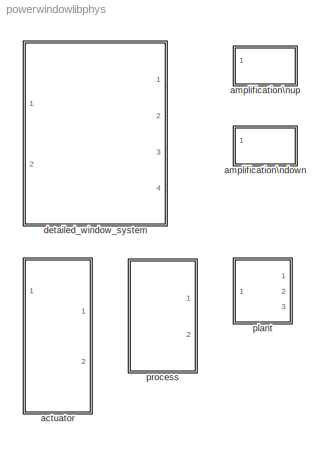
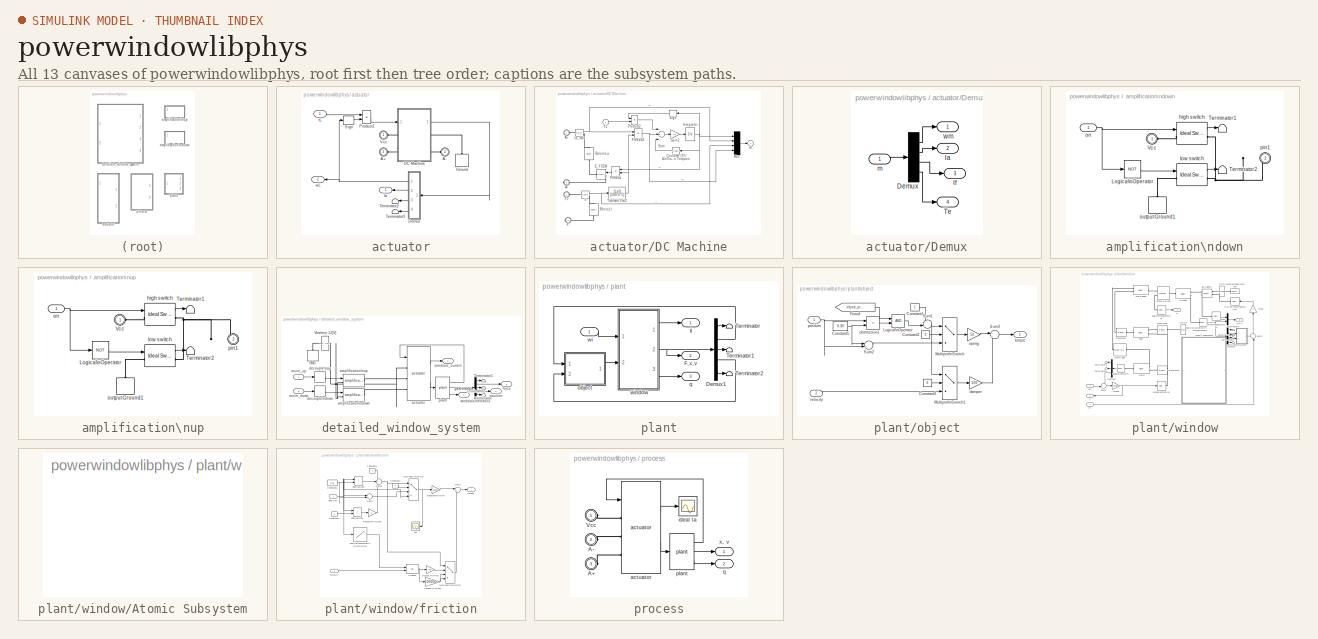
[diagram: thumbnail index - all 13 canvases of the model, root first then tree order]
MODEL powerwindowlibphys
KIND library
CONFIG InitFcn = powericon('psbinitsys',bdroot);
BLOCK [SubSystem] actuator
  MinAlgLoopOccurrences = off
  Ports = [1, 2, 0, 0, 0, 3]
  PropExecContextAcrossSSBoundary = on
  RTWSystemCode = Auto
  TreatAsAtomicUnit = off
BLOCK [PMIOPort] actuator/A+
  Port = 3
  Side = Left
BLOCK [PMIOPort] actuator/A-
  Port = 2
  Side = Left
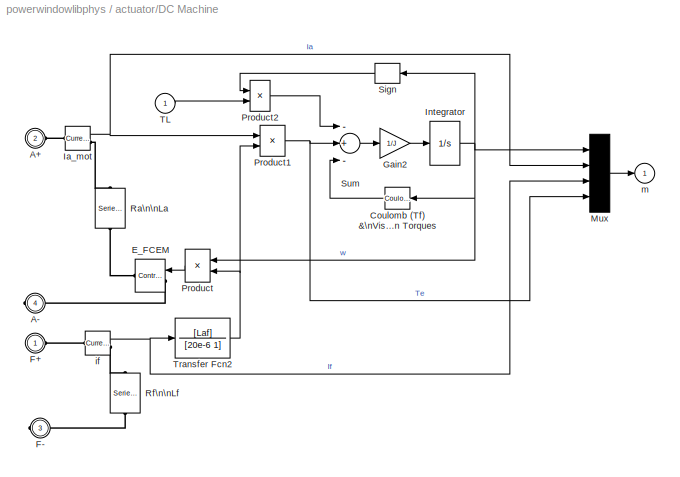
BLOCK [SubSystem] actuator/DC Machine
  MaskCallbackString = |||||||
  MaskDescription = This block implements a separately excited DC machine. Access is provided  to the field connections so that the machine can be used as a shunt-connected or a series-connected  DC machine. \n\nInput 1 and output 1 : positive and negative armature terminals\nInput 2 and output 2 : positive and negative field terminals\nInput 3    : Load torque \nOutput 3 : Simulink measurement output [ w Ia If Te ]
  MaskDisplay = plot(-80,-80,80,80,[0,9,18,24,29,30,29,24,18,9,0,-9,-18,-24,-29,-30,-29,-24,-18,-9,0],[30,29,24,18,9,0,-9,-18,-24,-29,-30,-29,-24,-18,-9,0,9,18,24,29,30],[-29,-35,-35,-29],[-8,-8,8,8],[29,35,35,29],[-8,-8,8,8],[-35,-55],[0,0],[35,55],[0,0],[-78,-50,-50,-49,-45,-39,-33,-26,-21,-18,-17,-19,-22,-22,-26,-27,-25,-22,-16,-9,-3,2,6,6,4,1,1,-3,-4,-2,2,7,14,20,26,29,30,28,24,24,21,20,21,25,31,37,44,49,50,5...<+266ch>
  MaskEnableString = on,on,on,on,on,on,on,on
  MaskHelp = web(psbhelp)
  MaskIconFrame = on
  MaskIconOpaque = off
  MaskIconRotate = none
  MaskIconUnits = autoscale
  MaskInitialization = Ra=RLa(1); La=RLa(2);\nRf=RLf(1); Lf=RLf(2);\n\n\n\n\n\n
  MaskPromptString = Armature resistance and inductance [Ra (ohms) La (H) ]|Field resistance and inductance [Rf (ohms) Lf (H) ]|Field-armature mutual inductance Laf (H) :|Total inertia J (kg.m^2)|Viscous friction coefficient Bm (N.m.s)|Coulomb friction torque Tf (N.m)|Initial speed (rad/s) :|Output type
  MaskStyleString = edit,edit,edit,edit,edit,edit,edit,edit
  MaskTabNameString = ,,,,,,,
  MaskToolTipString = on,on,on,on,on,on,on,on
  MaskTunableValueString = on,on,on,on,on,on,on,on
  MaskType = DC machine
  MaskValueString = [0.15  0.036]|[1.5 3]|1|0.085|5|0|0|110
  MaskVarAliasString = ,,,,,,,
  MaskVariables = RLa=@1;RLf=@2;Laf=@3;J=@4;Bm=@5;Tf=@6;w0=@7;PSBOutputType=@8;
  MaskVisibilityString = on,on,on,on,on,on,on,off
  MinAlgLoopOccurrences = off
  Ports = [1, 1, 0, 0, 0, 2, 2]
  PropExecContextAcrossSSBoundary = on
  RTWSystemCode = Auto
  TreatAsAtomicUnit = off
BLOCK [PMIOPort] actuator/DC Machine/A+
  Port = 2
  Side = Left
BLOCK [PMIOPort] actuator/DC Machine/A-
  Port = 4
  Side = Right
BLOCK [Reference] actuator/DC Machine/Coulomb (Tf) &\nViscous ( Bm*w) \nFriction Torques  REF=simulink/Discontinuities/Coulomb &\nViscous Friction
  Ports = [1, 1]
  ShowPortLabels = on
  SourceBlock = simulink/Discontinuities/Coulomb &\nViscous Friction
  SourceType = Coulombic and Viscous Friction
  gain = Bm
  offset = Tf
BLOCK [Reference] actuator/DC Machine/E_FCEM  REF=powerlib/Electrical\nSources/Controlled Voltage Source
  Amplitude = 0
  Frequency = 0
  Initialize = on
  Measurements = None
  Phase = 0
  Ports = [1, 0, 0, 0, 0, 1, 1]
  ShowPortLabels = on
  SourceBlock = powerlib/Electrical\nSources/Controlled Voltage Source
  SourceType = AC
BLOCK [PMIOPort] actuator/DC Machine/F+
  Port = 1
  Side = Left
BLOCK [PMIOPort] actuator/DC Machine/F-
  Port = 3
  Side = Right
BLOCK [Gain] actuator/DC Machine/Gain2
  Gain = 1/J
BLOCK [Reference] actuator/DC Machine/Ia_mot  REF=powerlib/Measurements/Current Measurement
  OutputType = Magnitude
  PSBequivalent = 0
  PhasorSimulation = off
  Ports = [0, 1, 0, 0, 0, 1, 1]
  ShowPortLabels = on
  SourceBlock = powerlib/Measurements/Current Measurement
  SourceType = Current Measurement
BLOCK [Integrator] actuator/DC Machine/Integrator
  InitialCondition = w0
  Ports = [1, 1]
BLOCK [Mux] actuator/DC Machine/Mux
  Ports = [4, 1]
BLOCK [Product] actuator/DC Machine/Product
  Ports = [2, 1]
  RndMeth = Floor
BLOCK [Product] actuator/DC Machine/Product1
  Ports = [2, 1]
  RndMeth = Floor
BLOCK [Product] actuator/DC Machine/Product2
  Ports = [2, 1]
  RndMeth = Floor
BLOCK [Reference] actuator/DC Machine/Ra\n\nLa  REF=powerlib/Elements/Series RLC Branch
  Capacitance = inf
  Inductance = La
  LConnTagsString = __new0
  LeftPortType = p1
  Measurements = None
  PhysicalDomain = powersysdomain
  Ports = [0, 0, 0, 0, 0, 1, 1]
  RConnTagsString = __new0
  Resistance = Ra
  RightPortType = p1
  SourceBlock = powerlib/Elements/Series RLC Branch
  SourceType = Series RLC Branch
  SubClassName = unknown
BLOCK [Reference] actuator/DC Machine/Rf\n\nLf  REF=powerlib/Elements/Series RLC Branch
  Capacitance = inf
  Inductance = Lf
  LConnTagsString = __new0
  LeftPortType = p1
  Measurements = None
  PhysicalDomain = powersysdomain
  Ports = [0, 0, 0, 0, 0, 1, 1]
  RConnTagsString = __new0
  Resistance = Rf
  RightPortType = p1
  SourceBlock = powerlib/Elements/Series RLC Branch
  SourceType = Series RLC Branch
  SubClassName = unknown
BLOCK [Signum] actuator/DC Machine/Sign
BLOCK [Sum] actuator/DC Machine/Sum
  Inputs = -+-
  Ports = [3, 1]
BLOCK [Inport] actuator/DC Machine/TL
  IconDisplay = Port number
  LatchInput = off
  Port = 1
BLOCK [TransferFcn] actuator/DC Machine/Transfer Fcn2
  Denominator = [20e-6 1]
  Numerator = [Laf]
BLOCK [Reference] actuator/DC Machine/if  REF=powerlib/Measurements/Current Measurement
  OutputType = Magnitude
  PSBequivalent = 0
  PhasorSimulation = off
  Ports = [0, 1, 0, 0, 0, 1, 1]
  ShowPortLabels = on
  SourceBlock = powerlib/Measurements/Current Measurement
  SourceType = Current Measurement
BLOCK [Outport] actuator/DC Machine/m
  BusOutputAsStruct = off
  IconDisplay = Port number
  InitialOutput = 0
BLOCK [SubSystem] actuator/Demux
  MinAlgLoopOccurrences = off
  Ports = [1, 4]
  PropExecContextAcrossSSBoundary = on
  RTWSystemCode = Auto
  TreatAsAtomicUnit = off
BLOCK [Demux] actuator/Demux/Demux
  Ports = [1, 4]
BLOCK [Outport] actuator/Demux/Ia
  BusOutputAsStruct = off
  IconDisplay = Port number
  Port = 2
BLOCK [Outport] actuator/Demux/If
  BusOutputAsStruct = off
  IconDisplay = Port number
  Port = 3
BLOCK [Outport] actuator/Demux/Te
  BusOutputAsStruct = off
  IconDisplay = Port number
  Port = 4
BLOCK [Inport] actuator/Demux/m
  IconDisplay = Port number
  LatchInput = off
  Port = 1
BLOCK [Outport] actuator/Demux/wm
  BusOutputAsStruct = off
  IconDisplay = Port number
BLOCK [PMComponent] actuator/Ground
  LConnTagsString = a
  LeftPortType = p1
  MaskDescription = Ground connection.
  MaskDisplay = plot(-10,-10,10,10,-[5 5],[-10 10],[0 0],[-5 5],-[-5 -5],[-2.5 2.5],-[15 5],[0 0])
  MaskHelp = web(psbhelp);
  MaskIconFrame = off
  MaskIconOpaque = on
  MaskIconRotate = port
  MaskIconUnits = autoscale
  MaskType = Ground
  PhysicalDomain = powersysdomain
  Ports = [0, 0, 0, 0, 0, 1]
  RightPortType = p1
BLOCK [Outport] actuator/Ia
  BusOutputAsStruct = off
  IconDisplay = Port number
BLOCK [Product] actuator/Product2
  Ports = [2, 1]
  RndMeth = Floor
BLOCK [Signum] actuator/Sign
BLOCK [Terminator] actuator/Terminator2
BLOCK [Terminator] actuator/Terminator3
BLOCK [PMIOPort] actuator/Vcc
  Port = 1
  Side = Left
BLOCK [Inport] actuator/tL
  IconDisplay = Port number
  LatchInput = off
  Port = 1
BLOCK [Outport] actuator/wL
  BusOutputAsStruct = off
  IconDisplay = Port number
  Port = 2
BLOCK [SubSystem] amplification\ndown
  MinAlgLoopOccurrences = off
  Ports = [1, 0, 0, 0, 0, 1, 1]
  PropExecContextAcrossSSBoundary = on
  RTWSystemCode = Auto
  TreatAsAtomicUnit = off
BLOCK [Logic] amplification\ndown/Logical\nOperator
  Operator = NOT
  Ports = [1, 1]
BLOCK [Terminator] amplification\ndown/Terminator1
BLOCK [Terminator] amplification\ndown/Terminator2
BLOCK [PMIOPort] amplification\ndown/Vcc
  Port = 1
  Side = Left
BLOCK [Reference] amplification\ndown/high switch  REF=powerlib/Power\nElectronics/Ideal Switch
  Cs = inf
  IC = 0
  Lon = 0
  Measurements = on
  Ports = [1, 1, 0, 0, 0, 1, 1]
  Ron = 0.01
  Rs = 1000000
  ShowPortLabels = on
  SourceBlock = powerlib/Power\nElectronics/Ideal Switch
  SourceType = Ideal Switch
BLOCK [Reference] amplification\ndown/low switch  REF=powerlib/Power\nElectronics/Ideal Switch
  Cs = inf
  IC = 0
  Lon = 0
  Measurements = on
  Ports = [1, 1, 0, 0, 0, 1, 1]
  Ron = 0.01
  Rs = 1000000
  ShowPortLabels = on
  SourceBlock = powerlib/Power\nElectronics/Ideal Switch
  SourceType = Ideal Switch
BLOCK [Inport] amplification\ndown/on
  IconDisplay = Port number
  LatchInput = off
  Port = 1
BLOCK [PMComponent] amplification\ndown/output Ground1
  LConnTagsString = a
  LeftPortType = p1
  MaskDescription = Ground connection.
  MaskDisplay = plot(-10,-10,10,10,-[5 5],[-10 10],[0 0],[-5 5],-[-5 -5],[-2.5 2.5],-[15 5],[0 0])
  MaskHelp = web(psbhelp);
  MaskIconFrame = off
  MaskIconOpaque = on
  MaskIconRotate = port
  MaskIconUnits = autoscale
  MaskType = Ground
  PhysicalDomain = powersysdomain
  Ports = [0, 0, 0, 0, 0, 1]
  RightPortType = p1
BLOCK [PMIOPort] amplification\ndown/pin1
  Port = 2
  Side = Right
BLOCK [SubSystem] amplification\nup
  MinAlgLoopOccurrences = off
  Ports = [1, 0, 0, 0, 0, 1, 1]
  PropExecContextAcrossSSBoundary = on
  RTWSystemCode = Auto
  TreatAsAtomicUnit = off
BLOCK [Logic] amplification\nup/Logical\nOperator
  Operator = NOT
  Ports = [1, 1]
BLOCK [Terminator] amplification\nup/Terminator1
BLOCK [Terminator] amplification\nup/Terminator2
BLOCK [PMIOPort] amplification\nup/Vcc
  Port = 1
  Side = Left
BLOCK [Reference] amplification\nup/high switch  REF=powerlib/Power\nElectronics/Ideal Switch
  Cs = inf
  IC = 0
  Lon = 0
  Measurements = on
  Ports = [1, 1, 0, 0, 0, 1, 1]
  Ron = 0.01
  Rs = 1000000
  ShowPortLabels = on
  SourceBlock = powerlib/Power\nElectronics/Ideal Switch
  SourceType = Ideal Switch
BLOCK [Reference] amplification\nup/low switch  REF=powerlib/Power\nElectronics/Ideal Switch
  Cs = inf
  IC = 0
  Lon = 0
  Measurements = on
  Ports = [1, 1, 0, 0, 0, 1, 1]
  Ron = 0.01
  Rs = 1000000
  ShowPortLabels = on
  SourceBlock = powerlib/Power\nElectronics/Ideal Switch
  SourceType = Ideal Switch
BLOCK [Inport] amplification\nup/on
  IconDisplay = Port number
  LatchInput = off
  Port = 1
BLOCK [PMComponent] amplification\nup/output Ground1
  LConnTagsString = a
  LeftPortType = p1
  MaskDescription = Ground connection.
  MaskDisplay = plot(-10,-10,10,10,-[5 5],[-10 10],[0 0],[-5 5],-[-5 -5],[-2.5 2.5],-[15 5],[0 0])
  MaskHelp = web(psbhelp);
  MaskIconFrame = off
  MaskIconOpaque = on
  MaskIconRotate = port
  MaskIconUnits = autoscale
  MaskType = Ground
  PhysicalDomain = powersysdomain
  Ports = [0, 0, 0, 0, 0, 1]
  RightPortType = p1
BLOCK [PMIOPort] amplification\nup/pin1
  Port = 2
  Side = Right
BLOCK [SubSystem] detailed_window_system
  MinAlgLoopOccurrences = off
  Ports = [2, 4]
  PropExecContextAcrossSSBoundary = on
  RTWSystemCode = Auto
  TreatAsAtomicUnit = off
BLOCK [PMComponent] detailed_window_system/GND
  LConnTagsString = a
  LeftPortType = p1
  MaskDescription = Ground connection.
  MaskDisplay = plot(-10,-10,10,10,-[5 5],[-10 10],[0 0],[-5 5],-[-5 -5],[-2.5 2.5],-[15 5],[0 0])
  MaskHelp = web(psbhelp);
  MaskIconFrame = off
  MaskIconOpaque = on
  MaskIconRotate = port
  MaskIconUnits = autoscale
  MaskType = Ground
  PhysicalDomain = powersysdomain
  Ports = [0, 0, 0, 0, 0, 1]
  RightPortType = p1
BLOCK [Terminator] detailed_window_system/Terminator
BLOCK [Terminator] detailed_window_system/Terminator1
BLOCK [Terminator] detailed_window_system/Terminator2
BLOCK [Reference] detailed_window_system/Vbattery 12[V]  REF=powerlib/Electrical\nSources/DC Voltage Source
  Amplitude = 12
  Measurements = None
  Ports = [0, 0, 0, 0, 0, 1, 1]
  ShowPortLabels = on
  SourceBlock = powerlib/Electrical\nSources/DC Voltage Source
  SourceType = DC Voltage Source
BLOCK [Reference] detailed_window_system/actuator  REF=powerwindowlibphys/actuator  (lib defined in mdl_f33da779f18b)
  Ports = [1, 2, 0, 0, 0, 3]
  ShowPortLabels = on
  SourceBlock = powerwindowlibphys/actuator
  SourceType = SubSystem
BLOCK [Reference] detailed_window_system/amplification\ndown  REF=powerwindowlibphys/amplification\ndown  (lib defined in mdl_f33da779f18b)
  Ports = [1, 0, 0, 0, 0, 1, 1]
  ShowPortLabels = on
  SourceBlock = powerwindowlibphys/amplification\ndown
  SourceType = SubSystem
BLOCK [Reference] detailed_window_system/amplification\nup  REF=powerwindowlibphys/amplification\nup  (lib defined in mdl_f33da779f18b)
  Ports = [1, 0, 0, 0, 0, 1, 1]
  ShowPortLabels = on
  SourceBlock = powerwindowlibphys/amplification\nup
  SourceType = SubSystem
BLOCK [Outport] detailed_window_system/armature_current
  BusOutputAsStruct = off
  IconDisplay = Port number
BLOCK [Memory] detailed_window_system/decouple\ndown
BLOCK [Memory] detailed_window_system/decouple\nup
BLOCK [Outport] detailed_window_system/force
  BusOutputAsStruct = off
  IconDisplay = Port number
  Port = 2
BLOCK [Outport] detailed_window_system/gear\nangle
  BusOutputAsStruct = off
  IconDisplay = Port number
  Port = 4
BLOCK [Inport] detailed_window_system/move_down
  IconDisplay = Port number
  LatchInput = off
  Port = 2
BLOCK [Inport] detailed_window_system/move_up
  IconDisplay = Port number
  LatchInput = off
  Port = 1
BLOCK [Reference] detailed_window_system/plant  REF=powerwindowlibphys/plant  (lib defined in mdl_f33da779f18b)
  Ports = [1, 3]
  ShowPortLabels = on
  SourceBlock = powerwindowlibphys/plant
  SourceType = SubSystem
BLOCK [Outport] detailed_window_system/position
  BusOutputAsStruct = off
  IconDisplay = Port number
  Port = 3
BLOCK [Demux] detailed_window_system/window kinematics
  Outputs = [1,1,2,1,4]
  Ports = [1, 5]
BLOCK [SubSystem] plant
  MinAlgLoopOccurrences = off
  Ports = [1, 3]
  PropExecContextAcrossSSBoundary = on
  RTWSystemCode = Auto
  TreatAsAtomicUnit = off
BLOCK [Demux] plant/Demux1
  Outputs = [4, 1, 2, 1, 1]
  Ports = [1, 5]
BLOCK [Outport] plant/F, x, v
  BusOutputAsStruct = off
  IconDisplay = Port number
  Port = 2
BLOCK [Terminator] plant/Terminator
BLOCK [Terminator] plant/Terminator1
BLOCK [Terminator] plant/Terminator2
BLOCK [SubSystem] plant/object
  MinAlgLoopOccurrences = off
  Ports = [2, 1]
  PropExecContextAcrossSSBoundary = on
  RTWSystemCode = Auto
  TreatAsAtomicUnit = off
BLOCK [Constant] plant/object/Constant1
BLOCK [Constant] plant/object/Constant2
  Value = 0
BLOCK [Constant] plant/object/Constant3
  Value = 0
BLOCK [Constant] plant/object/Constant5
  Value = 0.30
BLOCK [From] plant/object/From4
  CloseFcn = tagdialog Close
  DialogController = Simulink.DDGSource
  GotoTag = object_present
BLOCK [Logic] plant/object/Logical\nOperator
  Ports = [2, 1]
BLOCK [MultiPortSwitch] plant/object/Multiport\nSwitch
  Inputs = 2
  Ports = [3, 1]
  SaturateOnIntegerOverflow = off
BLOCK [MultiPortSwitch] plant/object/Multiport\nSwitch1
  Inputs = 2
  Ports = [3, 1]
  SaturateOnIntegerOverflow = off
BLOCK [Sum] plant/object/Sum1
  IconShape = round
  Inputs = ++|
  Ports = [2, 1]
BLOCK [Sum] plant/object/Sum2
  IconShape = round
  Inputs = |-+
  Ports = [2, 1]
BLOCK [Sum] plant/object/Sum3
  IconShape = round
  Inputs = |++
  Ports = [2, 1]
BLOCK [Gain] plant/object/damper
  Gain = 500
BLOCK [RelationalOperator] plant/object/obstruction1
  Operator = >
BLOCK [Inport] plant/object/position
  IconDisplay = Port number
  LatchInput = off
  Port = 1
BLOCK [Gain] plant/object/spring
  Gain = 50
BLOCK [Outport] plant/object/torque
  BusOutputAsStruct = off
  IconDisplay = Port number
BLOCK [Inport] plant/object/velocity
  IconDisplay = Port number
  LatchInput = off
  Port = 2
BLOCK [Outport] plant/q
  BusOutputAsStruct = off
  IconDisplay = Port number
  Port = 3
BLOCK [Outport] plant/ti
  BusOutputAsStruct = off
  IconDisplay = Port number
BLOCK [Inport] plant/wi
  IconDisplay = Port number
  LatchInput = off
  Port = 1
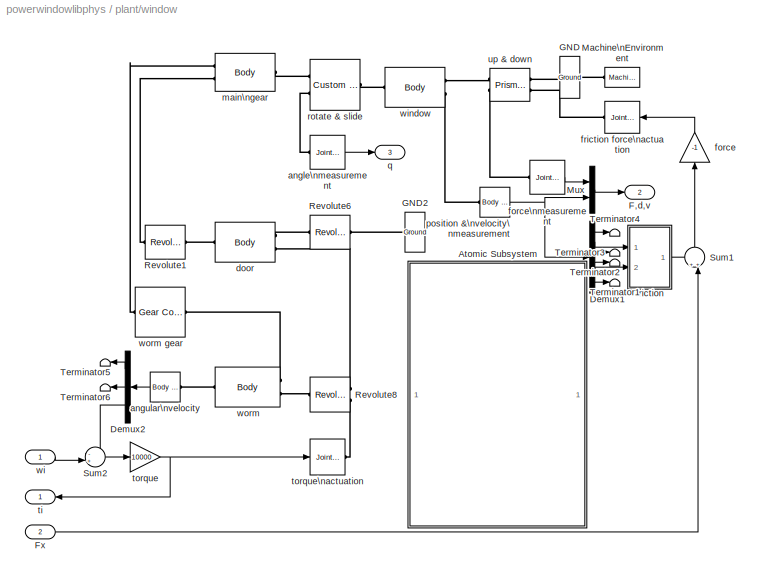
BLOCK [SubSystem] plant/window
  MinAlgLoopOccurrences = off
  Ports = [2, 3]
  PropExecContextAcrossSSBoundary = on
  RTWSystemCode = Auto
  TreatAsAtomicUnit = off
BLOCK [SubSystem] plant/window/Atomic Subsystem
  MaskDisplay = image(imread('pw_window1c.jpg'))
  MaskIconFrame = on
  MaskIconOpaque = on
  MaskIconRotate = none
  MaskIconUnits = autoscale
  MinAlgLoopOccurrences = off
  Ports = []
  PropExecContextAcrossSSBoundary = on
  RTWSystemCode = Auto
  TreatAsAtomicUnit = on
BLOCK [Demux] plant/window/Demux1
  Outputs = 6
  Ports = [1, 6]
BLOCK [Demux] plant/window/Demux2
  Outputs = 3
  Ports = [1, 3]
BLOCK [Outport] plant/window/F,d,v
  BusOutputAsStruct = off
  IconDisplay = Port number
  Port = 2
BLOCK [Inport] plant/window/Fx
  IconDisplay = Port number
  LatchInput = off
  Port = 2
BLOCK [Reference] plant/window/GND  REF=mblibv1/Bodies/Ground
  ClassName = Ground
  CoordPosition = [10 0 0]
  CoordPositionUnits = cm
  DialogClass = GroundBlock
  LeftPortType = env
  MachineId = [0 0]
  Opaque = on
  PhysicalDomain = Mechanical
  Ports = [0, 0, 0, 0, 0, 1, 1]
  RightPortType = workingframe
  ShowEnvPort = on
  ShowPortLabels = on
  SourceBlock = mblibv1/Bodies/Ground
  SourceType = msb
  StateVectorMgrId = -1
  UserData = DataTag0
  UserDataPersistent = on
BLOCK [Reference] plant/window/GND2  REF=mblibv1/Bodies/Ground
  ClassName = Ground
  CoordPosition = [0 0 0]
  CoordPositionUnits = m
  DialogClass = GroundBlock
  LeftPortType = env
  MachineId = [0 0]
  Opaque = on
  PhysicalDomain = Mechanical
  Ports = [0, 0, 0, 0, 0, 0, 1]
  RightPortType = workingframe
  ShowEnvPort = off
  ShowPortLabels = on
  SourceBlock = mblibv1/Bodies/Ground
  SourceType = msb
  StateVectorMgrId = -1
  UserData = DataTag1
  UserDataPersistent = on
BLOCK [Reference] plant/window/Machine\nEnvironment  REF=mblibv1/Bodies/Machine\nEnvironment
  AnalysisType = Forward dynamics
  AngularAssemblyTolerance = 0.001
  AngularAssemblyToleranceUnits = rad
  ClassName = Environment
  ConstraintAbsTolerance = 0.0001
  ConstraintRelTolerance = 0.0001
  ConstraintSolverType = Stabilizing
  DialogController = MECH.DialogSource
  DialogTemplateClass = MECH.MachineEnvironment
  Dimensionality = Auto-detect
  Gravity = [0 0 0]
  GravityAsSignal = off
  GravityUnits = m/s^2
  LinearAssemblyTolerance = 0.001
  LinearAssemblyToleranceUnits = m
  Opaque = on
  PerturbationSize = 0.001
  PhysicalDomain = Mechanical
  PortType = env
  Ports = [0, 0, 0, 0, 0, 0, 1]
  ShowPortLabels = on
  SourceBlock = mblibv1/Bodies/Machine\nEnvironment
  SourceType = Mechanical
  StatePerturbationType = Adaptive
  SyncWhenCopied = off
  Tag = Factory ground
  UseRobustSingularityHandling = off
  VisualizeMachine = on
BLOCK [Mux] plant/window/Mux
  DisplayOption = bar
  Inputs = 2
  Ports = [2, 1]
BLOCK [Reference] plant/window/Revolute1  REF=mblibv1/Joints/Revolute
  ClassName = Joint
  CutJoint = off
  Description = Mechanical Blockset
  DialogClass = JointBlock
  LConnTagsString = __newl0
  LeftPortType = blob
  MarkAsCut = off
  NumSAPorts = 0
  PhysicalDomain = mechanical
  Ports = [0, 0, 0, 0, 0, 1, 1]
  PrimitiveProps = R1$WORLD$[0 0 1]$revolute
  Primitives = revolute
  RConnTagsString = __newr0
  RightPortType = blob
  SourceBlock = mblibv1/Joints/Revolute
  SourceType = msb
  SubClassName = Unknown
  Tag = Factory generic
BLOCK [Reference] plant/window/Revolute6  REF=mblibv1/Joints/Revolute
  ClassName = Joint
  CutJoint = off
  Description = Mechanical Blockset
  DialogClass = JointBlock
  LConnTagsString = __newl0
  LeftPortType = blob
  MarkAsCut = off
  NumSAPorts = 0
  PhysicalDomain = mechanical
  Ports = [0, 0, 0, 0, 0, 1, 1]
  PrimitiveProps = R1$WORLD$[1 0 0]$revolute
  Primitives = revolute
  RConnTagsString = __newr0
  RightPortType = blob
  SourceBlock = mblibv1/Joints/Revolute
  SourceType = msb
  SubClassName = Unknown
  Tag = Factory generic
BLOCK [Reference] plant/window/Revolute8  REF=mblibv1/Joints/Revolute
  ClassName = Joint
  CutJoint = off
  Description = Mechanical Blockset
  DialogClass = JointBlock
  LConnTagsString = __newl0|SA1
  LeftPortType = blob
  MarkAsCut = off
  NumSAPorts = 1
  PhysicalDomain = mechanical
  Ports = [0, 0, 0, 0, 0, 2, 1]
  PrimitiveProps = R1$WORLD$[0 0 1]$revolute
  Primitives = revolute
  RConnTagsString = __newr0
  RightPortType = blob
  SourceBlock = mblibv1/Joints/Revolute
  SourceType = msb
  SubClassName = Unknown
  Tag = Factory generic
BLOCK [Sum] plant/window/Sum1
  IconShape = round
  Inputs = ++|
  Ports = [2, 1]
BLOCK [Sum] plant/window/Sum2
  IconShape = round
  Inputs = -+|
  Ports = [2, 1]
BLOCK [Terminator] plant/window/Terminator1
BLOCK [Terminator] plant/window/Terminator2
BLOCK [Terminator] plant/window/Terminator3
BLOCK [Terminator] plant/window/Terminator4
BLOCK [Terminator] plant/window/Terminator5
BLOCK [Terminator] plant/window/Terminator6
BLOCK [Reference] plant/window/angle\nmeasurement  REF=mblibv1/Sensors & \nActuators/Joint Sensor
  Acceleration = off
  AccelerationUnits = m/s
  ActiveIO = off
  Angle = on
  AngleUnits = rad
  ArcAcceleration = off
  ArcAccelerationUnits = deg/s
  ArcVelocity = off
  ArcVelocityUnits = deg/s
  ClassName = JointSensor
  CoordPosition = off
  CoordPositionUnits = m
  Description = Mechanical Blockset
  DialogClass = MechanicalSensorBlock
  Force = off
  ForceUnits = N
  Muxed = on
  Opaque = on
  OutputVector = [ 1 ]
  PhysicalDomain = Mechanical
  PortType = blob
  Ports = [0, 1, 0, 0, 0, 1]
  Pose = off
  Primitive = R1
  Quaternion = on
  QuaternionDDT = off
  QuaternionDT = off
  QuaternionUnits = off
  ReactionForce = off
  ReactionForceUnits = N
  ReactionMoment = off
  ReactionMomentUnits = N-m
  ReactionReferenceFrame = Absolute (World)
  ReactionSensedSide = Base
  ReferenceFrame = Absolute (INERTIAL)
  ShowPortLabels = on
  SourceBlock = mblibv1/Sensors & \nActuators/Joint Sensor
  SourceType = msb
  Torque = off
  TorqueUnits = N-m
  Velocity = off
  VelocityUnits = m/s
  Width = 1
BLOCK [Reference] plant/window/angular\nvelocity  REF=mblibv1/Sensors & \nActuators/Body Sensor
  Acceleration = off
  AccelerationUnits = m/s
  ActiveIO = off
  Angle = on
  AngleUnits = deg
  ArcAcceleration = off
  ArcAccelerationUnits = deg/s
  ArcVelocity = on
  ArcVelocityUnits = rad/s
  ClassName = BodySensor
  CoordPosition = off
  CoordPositionUnits = m
  Description = Mechanical Blockset
  DialogClass = MechanicalSensorBlock
  Muxed = on
  Opaque = on
  OutputVector = [ 3 ]
  PhysicalDomain = Mechanical
  PortType = blob
  Ports = [0, 1, 0, 0, 0, 1]
  Pose = off
  Quaternion = on
  QuaternionDDT = off
  QuaternionDT = off
  QuaternionUnits = off
  ReferenceFrame = Absolute (World)
  ShowPortLabels = on
  SourceBlock = mblibv1/Sensors & \nActuators/Body Sensor
  SourceType = msb
  Velocity = off
  VelocityUnits = m/s
  Width = 3
BLOCK [Reference] plant/window/door  REF=mblibv1/Bodies/Body
  CG = Left$CG$[0 0 0]$WORLD$WORLD$cm$[0 0 0]$Euler X-Y-Z$deg$WORLD$true
  ClassName = Body
  Density = 1
  DensityUnits = kg/m^3
  DensityUse = false
  Description = Mechanical Blockset
  DialogClass = MechanicalBodyBlock
  Inertia = eye(3)
  InertiaUnits = kg*m^2
  LConnTagsString = CS3|CG
  LeftPortType = workingframe
  Mass = 1
  MassUnits = kg
  PhysicalDomain = mechanical
  Ports = [0, 0, 0, 0, 0, 2, 1]
  RConnTagsString = CS1
  RightPortType = workingframe
  Shape = Cylinder
  ShapeDims = [1 1]
  ShapeUnits = m
  ShapeUse = false
  SourceBlock = mblibv1/Bodies/Body
  SourceType = msb
  SubClassName = Unknown
  Tag = Factory generic
  WorkingFrames = Left$CS3$[0 0 0]$CG$CG$cm$[0 0 0]$Euler X-Y-Z$deg$WORLD$true#Right$CS1$[17 0 0]$CG$CG$cm$[0 0 0]$Euler X-Y-Z$deg$WORLD$true
BLOCK [Gain] plant/window/force
  Gain = -1
BLOCK [Reference] plant/window/force\nmeasurement  REF=mblibv1/Sensors & \nActuators/Joint Sensor
  Acceleration = off
  AccelerationUnits = m/s
  ActiveIO = off
  Angle = on
  AngleUnits = deg
  ArcAcceleration = off
  ArcAccelerationUnits = deg/s
  ArcVelocity = off
  ArcVelocityUnits = deg/s
  ClassName = JointSensor
  CoordPosition = off
  CoordPositionUnits = m
  Description = Mechanical Blockset
  DialogClass = MechanicalSensorBlock
  Force = off
  ForceUnits = N
  Muxed = on
  Opaque = on
  OutputVector = [ 3 ]
  PhysicalDomain = Mechanical
  PortType = blob
  Ports = [0, 1, 0, 0, 0, 1]
  Pose = off
  Primitive = P1
  Quaternion = on
  QuaternionDDT = off
  QuaternionDT = off
  QuaternionUnits = off
  ReactionForce = on
  ReactionForceUnits = N
  ReactionMoment = off
  ReactionMomentUnits = N-m
  ReactionReferenceFrame = Absolute (World)
  ReactionSensedSide = Base
  ReferenceFrame = Absolute (INERTIAL)
  ShowPortLabels = on
  SourceBlock = mblibv1/Sensors & \nActuators/Joint Sensor
  SourceType = msb
  Torque = off
  TorqueUnits = N-m
  Velocity = off
  VelocityUnits = m/s
  Width = 3
BLOCK [SubSystem] plant/window/friction
  MinAlgLoopOccurrences = off
  Ports = [2, 1]
  PropExecContextAcrossSSBoundary = on
  RTWSystemCode = Auto
  TreatAsAtomicUnit = off
BLOCK [Reference] plant/window/friction force\nactuation  REF=mblibv1/Sensors & \nActuators/Joint Actuator
  AccelerationUnits = m/s
  ActiveIO = off
  ActuationStyle = Force
  AngleUnits = deg
  ArcAccelerationUnits = deg/s
  ArcVelocityUnits = deg/s
  ClassName = JointActuator
  CoordPositionUnits = m
  Description = Mechanical Blockset
  DialogClass = MechanicalActuatorBlock
  ForceUnits = N
  Opaque = on
  PhysicalDomain = Mechanical
  PortType = blob
  Ports = [1, 0, 0, 0, 0, 0, 1]
  Primitive = P1
  ReferenceFrame = Absolute (INERTIAL)
  ShowPortLabels = on
  SourceBlock = mblibv1/Sensors & \nActuators/Joint Actuator
  SourceType = msb
  TorqueUnits = N-m
  VelocityUnits = m/s
  Width = 1
BLOCK [Constant] plant/window/friction/Constant1
  Value = 0
BLOCK [Constant] plant/window/friction/Constant2
  Value = 0
BLOCK [Constant] plant/window/friction/Constant3
BLOCK [Constant] plant/window/friction/Constant5
  Value = 0.45
BLOCK [MultiPortSwitch] plant/window/friction/Multiport\nSwitch
  Inputs = 3
  Ports = [4, 1]
  SaturateOnIntegerOverflow = off
BLOCK [MultiPortSwitch] plant/window/friction/Multiport\nSwitch1
  Inputs = 3
  Ports = [4, 1]
  SaturateOnIntegerOverflow = off
BLOCK [Product] plant/window/friction/Product
  Ports = [2, 1]
  RndMeth = Floor
BLOCK [Sum] plant/window/friction/Sum1
  IconShape = round
  Inputs = |++
  Ports = [2, 1]
BLOCK [Sum] plant/window/friction/Sum2
  IconShape = round
  Inputs = |+-
  Ports = [2, 1]
BLOCK [Sum] plant/window/friction/Sum3
  IconShape = round
  Inputs = +++
  Ports = [3, 1]
BLOCK [Gain] plant/window/friction/endstop\nfriction
  Gain = 75000
BLOCK [RelationalOperator] plant/window/friction/obstruction1
  Operator = >
BLOCK [RelationalOperator] plant/window/friction/obstruction2
  Operator = <
BLOCK [Inport] plant/window/friction/position
  IconDisplay = Port number
  LatchInput = off
  Port = 1
BLOCK [Outport] plant/window/friction/torque
  BusOutputAsStruct = off
  IconDisplay = Port number
BLOCK [Lookup] plant/window/friction/vehicle\ncharacteristic\nfriction
  DialogController = Simulink.DDGSource
  InputValues = [0 2.5 10 11.5 14 24 30 31 35 47 50]
  OutputValues = [1.15 1.2 1.05 1.1 1.05 1 1.1 1 0.95 0.9 0.95]
BLOCK [Scope] plant/window/friction/vel
  DataFormat = StructureWithTime
  NumInputPorts = 1
  Ports = [1]
  SaveName = ScopeData6
  YMax = 1
  YMin = -1
BLOCK [Inport] plant/window/friction/velocity
  IconDisplay = Port number
  LatchInput = off
  Port = 2
BLOCK [Gain] plant/window/friction/viscous friction
  Gain = 150
BLOCK [Gain] plant/window/friction/viscous friction1
  Gain = 100000
BLOCK [Gain] plant/window/friction/viscous\nfriction3
  Gain = 2
BLOCK [Reference] plant/window/main\ngear  REF=mblibv1/Bodies/Body
  CG = Left$CG$[17 0 0]$WORLD$WORLD$cm$[0 0 0]$Euler X-Y-Z$deg$WORLD$true
  ClassName = Body
  Density = 1
  DensityUnits = kg/m^3
  DensityUse = false
  Description = Mechanical Blockset
  DialogClass = MechanicalBodyBlock
  Inertia = eye(3)
  InertiaUnits = kg*m^2
  LConnTagsString = CS3|CG
  LeftPortType = workingframe
  Mass = 2
  MassUnits = kg
  PhysicalDomain = mechanical
  Ports = [0, 0, 0, 0, 0, 2, 1]
  RConnTagsString = CS1
  RightPortType = workingframe
  Shape = Cylinder
  ShapeDims = [1 1]
  ShapeUnits = m
  ShapeUse = false
  SourceBlock = mblibv1/Bodies/Body
  SourceType = msb
  SubClassName = Unknown
  Tag = Factory generic
  WorkingFrames = Left$CS3$[0 0 0]$CG$CG$cm$[0 0 0]$Euler X-Y-Z$deg$WORLD$true#Right$CS1$[60 0 0]$CG$CG$cm$[0 0 0]$Euler X-Y-Z$deg$WORLD$true
BLOCK [Reference] plant/window/position &\nvelocity\nmeasurement  REF=mblibv1/Sensors & \nActuators/Body Sensor
  Acceleration = off
  AccelerationUnits = m/s
  ActiveIO = off
  Angle = on
  AngleUnits = deg
  ArcAcceleration = off
  ArcAccelerationUnits = deg/s
  ArcVelocity = off
  ArcVelocityUnits = deg/s
  ClassName = BodySensor
  CoordPosition = on
  CoordPositionUnits = m
  Description = Mechanical Blockset
  DialogClass = MechanicalSensorBlock
  Muxed = on
  Opaque = on
  OutputVector = [ 3 3 ]
  PhysicalDomain = Mechanical
  PortType = blob
  Ports = [0, 1, 0, 0, 0, 1]
  Pose = off
  Quaternion = on
  QuaternionDDT = off
  QuaternionDT = off
  QuaternionUnits = off
  ReferenceFrame = Absolute (World)
  ShowPortLabels = on
  SourceBlock = mblibv1/Sensors & \nActuators/Body Sensor
  SourceType = msb
  Velocity = on
  VelocityUnits = m/s
  Width = 6
BLOCK [Outport] plant/window/q
  BusOutputAsStruct = off
  IconDisplay = Port number
  Port = 3
BLOCK [Reference] plant/window/rotate & slide  REF=mblibv1/Joints/Custom Joint
  ClassName = Joint
  CutJoint = off
  Description = Mechanical Blockset
  DialogClass = JointBlock
  LConnTagsString = __newl0|SA1
  LeftPortType = blob
  MarkAsCut = off
  NumSAPorts = 1
  PhysicalDomain = mechanical
  Ports = [0, 0, 0, 0, 0, 2, 1]
  PrimitiveProps = R1$Base$[0 0 1]$revolute#P1$Follower$[1 0 0]$prismatic
  Primitives = revolute_prismatic
  RConnTagsString = __newr0
  RightPortType = blob
  SourceBlock = mblibv1/Joints/Custom Joint
  SourceType = msb
  SubClassName = custom_joint
  Tag = Factory generic
BLOCK [Outport] plant/window/ti
  BusOutputAsStruct = off
  IconDisplay = Port number
BLOCK [Gain] plant/window/torque
  Gain = 10000
BLOCK [Reference] plant/window/torque\nactuation  REF=mblibv1/Sensors & \nActuators/Joint Actuator
  AccelerationUnits = m/s
  ActiveIO = off
  ActuationStyle = Force
  AngleUnits = deg
  ArcAccelerationUnits = deg/s
  ArcVelocityUnits = deg/s
  ClassName = JointActuator
  CoordPositionUnits = m
  Description = Mechanical Blockset
  DialogClass = MechanicalActuatorBlock
  ForceUnits = N
  Opaque = on
  PhysicalDomain = Mechanical
  PortType = blob
  Ports = [1, 0, 0, 0, 0, 0, 1]
  Primitive = R1
  ReferenceFrame = Absolute (INERTIAL)
  ShowPortLabels = on
  SourceBlock = mblibv1/Sensors & \nActuators/Joint Actuator
  SourceType = msb
  TorqueUnits = N-m
  VelocityUnits = m/s
  Width = 1
BLOCK [Reference] plant/window/up & down  REF=mblibv1/Joints/Prismatic
  ClassName = Joint
  CutJoint = on
  Description = Mechanical Blockset
  DialogClass = JointBlock
  LConnTagsString = __newl0|SA1
  LeftPortType = blob
  MarkAsCut = off
  NumSAPorts = 2
  PhysicalDomain = mechanical
  Ports = [0, 0, 0, 0, 0, 2, 2]
  PrimitiveProps = P1$WORLD$[0 1 0]$prismatic
  Primitives = prismatic
  RConnTagsString = __newr0|SA1
  RightPortType = blob
  SourceBlock = mblibv1/Joints/Prismatic
  SourceType = msb
  SubClassName = Unknown
  Tag = Factory generic
BLOCK [Inport] plant/window/wi
  IconDisplay = Port number
  LatchInput = off
  Port = 1
BLOCK [Reference] plant/window/window  REF=mblibv1/Bodies/Body
  CG = Left$CG$[10 0 0]$WORLD$WORLD$cm$[0 0 0]$Euler X-Y-Z$deg$WORLD$false
  ClassName = Body
  Density = 1
  DensityUnits = kg/m^3
  DensityUse = false
  Description = Mechanical Blockset
  DialogClass = MechanicalBodyBlock
  Inertia = eye(3)
  InertiaUnits = kg*m^2
  LConnTagsString = CS1
  LeftPortType = workingframe
  Mass = 5
  MassUnits = kg
  PhysicalDomain = mechanical
  Ports = [0, 0, 0, 0, 0, 1, 2]
  RConnTagsString = CS2|CS3
  RightPortType = workingframe
  Shape = Cylinder
  ShapeDims = [1 1]
  ShapeUnits = m
  ShapeUse = false
  SourceBlock = mblibv1/Bodies/Body
  SourceType = msb
  SubClassName = Unknown
  Tag = Factory generic
  WorkingFrames = Left$CS1$[0 0 0]$CG$CG$cm$[0 0 0]$Euler X-Y-Z$deg$WORLD$true#Right$CS2$[0 0 0]$CG$CG$cm$[0 0 0]$Euler X-Y-Z$deg$WORLD$true#Right$CS3$[-15 0 0]$CG$CG$cm$[0 0 0]$Euler X-Y-Z$deg$WORLD$true
BLOCK [Reference] plant/window/worm  REF=mblibv1/Bodies/Body
  CG = Right$CG$[0 0 0]$WORLD$WORLD$cm$[0 0 0]$Euler X-Y-Z$deg$WORLD$true
  ClassName = Body
  Density = 1
  DensityUnits = kg/m^3
  DensityUse = false
  Description = Mechanical Blockset
  DialogClass = MechanicalBodyBlock
  Inertia = eye(3)
  InertiaUnits = kg*m^2
  LConnTagsString = CS3|CS4
  LeftPortType = workingframe
  Mass = 0.5
  MassUnits = kg
  PhysicalDomain = mechanical
  Ports = [0, 0, 0, 0, 0, 2, 1]
  RConnTagsString = CG
  RightPortType = workingframe
  Shape = Cylinder
  ShapeDims = [1 1]
  ShapeUnits = m
  ShapeUse = false
  SourceBlock = mblibv1/Bodies/Body
  SourceType = msb
  SubClassName = Unknown
  Tag = Factory generic
  WorkingFrames = Left$CS3$[0 0 0]$CG$CG$cm$[0 0 0]$Euler X-Y-Z$deg$WORLD$true#Left$CS4$[0 0 0]$CG$CG$cm$[0 0 0]$Euler X-Y-Z$deg$WORLD$true
BLOCK [Reference] plant/window/worm gear  REF=mblibv1/Constraints & \nDrivers/Gear Constraint
  BaseRadius = 2
  BaseRadiusUnits = cm
  ClassName = GearConstraint
  Description = Mechanical Blockset
  DialogClass = GearConstraint
  FollowerRadius = 15
  FollowerRadiusUnits = cm
  LConnTagsString = __newl0
  LeftPortType = blob
  NumSAPorts = 0
  PhysicalDomain = mechanical
  Ports = [0, 0, 0, 0, 0, 1, 1]
  RConnTagsString = __newr0
  RightPortType = blob
  SourceBlock = mblibv1/Constraints & \nDrivers/Gear Constraint
  SourceType = GearConstraint
  SubClassName = Unknown
  Tag = Factory generic
BLOCK [SubSystem] process
  MinAlgLoopOccurrences = off
  Ports = [0, 2, 0, 0, 0, 3]
  PropExecContextAcrossSSBoundary = on
  RTWSystemCode = Auto
  TreatAsAtomicUnit = off
BLOCK [PMIOPort] process/A+
  Port = 3
  Side = Left
BLOCK [PMIOPort] process/A-
  Port = 2
  Side = Left
BLOCK [PMIOPort] process/Vcc
  Port = 1
  Side = Left
BLOCK [Reference] process/actuator  REF=powerwindowlibphys/actuator  (lib defined in mdl_f33da779f18b)
  Ports = [1, 2, 0, 0, 0, 3]
  ShowPortLabels = on
  SourceBlock = powerwindowlibphys/actuator
  SourceType = SubSystem
BLOCK [Scope] process/ideal Ia
  DataFormat = StructureWithTime
  NumInputPorts = 1
  Ports = [1]
  SaveName = ScopeData4
  YMax = 20
  YMin = -7.5
BLOCK [Reference] process/plant  REF=powerwindowlibphys/plant  (lib defined in mdl_f33da779f18b)
  Ports = [1, 3]
  ShowPortLabels = on
  SourceBlock = powerwindowlibphys/plant
  SourceType = SubSystem
BLOCK [Outport] process/q
  BusOutputAsStruct = off
  IconDisplay = Port number
  Port = 2
BLOCK [Outport] process/x, v
  BusOutputAsStruct = off
  IconDisplay = Port number
LINE actuator/DC Machine/Coulomb (Tf) &\nViscous ( Bm*w) \nFriction Torques:1 -> actuator/DC Machine/Sum:3
LINE actuator/DC Machine/Gain2:1 -> actuator/DC Machine/Integrator:1
NET actuator/DC Machine/Ia_mot:1 -> actuator/DC Machine/Mux:2, actuator/DC Machine/Product1:1
NET actuator/DC Machine/Integrator:1 -> actuator/DC Machine/Coulomb (Tf) &\nViscous ( Bm*w) \nFriction Torques:1, actuator/DC Machine/Mux:1, actuator/DC Machine/Product:1, actuator/DC Machine/Sign:1
LINE actuator/DC Machine/Mux:1 -> actuator/DC Machine/m:1
NET actuator/DC Machine/Product1:1 -> actuator/DC Machine/Mux:4, actuator/DC Machine/Sum:2
LINE actuator/DC Machine/Product2:1 -> actuator/DC Machine/Sum:1
LINE actuator/DC Machine/Product:1 -> actuator/DC Machine/E_FCEM:1
LINE actuator/DC Machine/Sign:1 -> actuator/DC Machine/Product2:1
LINE actuator/DC Machine/Sum:1 -> actuator/DC Machine/Gain2:1
LINE actuator/DC Machine/TL:1 -> actuator/DC Machine/Product2:2
NET actuator/DC Machine/Transfer Fcn2:1 -> actuator/DC Machine/Product1:2, actuator/DC Machine/Product:2
NET actuator/DC Machine/if:1 -> actuator/DC Machine/Mux:3, actuator/DC Machine/Transfer Fcn2:1
LINE actuator/DC Machine:1 -> actuator/Demux:1
LINE actuator/Demux/Demux:1 -> actuator/Demux/wm:1
LINE actuator/Demux/Demux:2 -> actuator/Demux/Ia:1
LINE actuator/Demux/Demux:3 -> actuator/Demux/If:1
LINE actuator/Demux/Demux:4 -> actuator/Demux/Te:1
LINE actuator/Demux/m:1 -> actuator/Demux/Demux:1
NET actuator/Demux:1 -> actuator/Sign:1, actuator/wL:1
LINE actuator/Demux:2 -> actuator/Ia:1
LINE actuator/Demux:3 -> actuator/Terminator2:1
LINE actuator/Demux:4 -> actuator/Terminator3:1
LINE actuator/Product2:1 -> actuator/DC Machine:1
LINE actuator/Sign:1 -> actuator/Product2:2
LINE actuator/tL:1 -> actuator/Product2:1
LINE amplification\ndown/Logical\nOperator:1 -> amplification\ndown/low switch:1
LINE amplification\ndown/high switch:1 -> amplification\ndown/Terminator1:1
LINE amplification\ndown/low switch:1 -> amplification\ndown/Terminator2:1
NET amplification\ndown/on:1 -> amplification\ndown/Logical\nOperator:1, amplification\ndown/high switch:1
LINE amplification\nup/Logical\nOperator:1 -> amplification\nup/low switch:1
LINE amplification\nup/high switch:1 -> amplification\nup/Terminator1:1
LINE amplification\nup/low switch:1 -> amplification\nup/Terminator2:1
NET amplification\nup/on:1 -> amplification\nup/Logical\nOperator:1, amplification\nup/high switch:1
LINE detailed_window_system/actuator:1 -> detailed_window_system/armature_current:1
LINE detailed_window_system/actuator:2 -> detailed_window_system/plant:1
LINE detailed_window_system/decouple\ndown:1 -> detailed_window_system/amplification\ndown:1
LINE detailed_window_system/decouple\nup:1 -> detailed_window_system/amplification\nup:1
LINE detailed_window_system/move_down:1 -> detailed_window_system/decouple\ndown:1
LINE detailed_window_system/move_up:1 -> detailed_window_system/decouple\nup:1
LINE detailed_window_system/plant:1 -> detailed_window_system/actuator:1
LINE detailed_window_system/plant:2 -> detailed_window_system/window kinematics:1
LINE detailed_window_system/plant:3 -> detailed_window_system/gear\nangle:1
LINE detailed_window_system/window kinematics:1 -> detailed_window_system/Terminator1:1
LINE detailed_window_system/window kinematics:2 -> detailed_window_system/force:1
LINE detailed_window_system/window kinematics:3 -> detailed_window_system/Terminator2:1
LINE detailed_window_system/window kinematics:4 -> detailed_window_system/position:1
LINE detailed_window_system/window kinematics:5 -> detailed_window_system/Terminator:1
LINE plant/Demux1:1 -> plant/Terminator:1
LINE plant/Demux1:2 -> plant/object:1
LINE plant/Demux1:3 -> plant/Terminator1:1
LINE plant/Demux1:4 -> plant/object:2
LINE plant/Demux1:5 -> plant/Terminator2:1
LINE plant/object/Constant1:1 -> plant/object/Sum1:1
LINE plant/object/Constant2:1 -> plant/object/Multiport\nSwitch:2
LINE plant/object/Constant3:1 -> plant/object/Multiport\nSwitch1:2
NET plant/object/Constant5:1 -> plant/object/Sum2:1, plant/object/obstruction1:2
LINE plant/object/From4:1 -> plant/object/Logical\nOperator:1
LINE plant/object/Logical\nOperator:1 -> plant/object/Sum1:2
LINE plant/object/Multiport\nSwitch1:1 -> plant/object/damper:1
LINE plant/object/Multiport\nSwitch:1 -> plant/object/spring:1
NET plant/object/Sum1:1 -> plant/object/Multiport\nSwitch1:1, plant/object/Multiport\nSwitch:1
LINE plant/object/Sum2:1 -> plant/object/Multiport\nSwitch:3
LINE plant/object/Sum3:1 -> plant/object/torque:1
LINE plant/object/damper:1 -> plant/object/Sum3:2
LINE plant/object/obstruction1:1 -> plant/object/Logical\nOperator:2
NET plant/object/position:1 -> plant/object/Sum2:2, plant/object/obstruction1:1
LINE plant/object/spring:1 -> plant/object/Sum3:1
LINE plant/object/velocity:1 -> plant/object/Multiport\nSwitch1:3
LINE plant/object:1 -> plant/window:2
LINE plant/wi:1 -> plant/window:1
LINE plant/window/Demux1:1 -> plant/window/Terminator4:1
LINE plant/window/Demux1:2 -> plant/window/friction:1
LINE plant/window/Demux1:3 -> plant/window/Terminator3:1
LINE plant/window/Demux1:4 -> plant/window/Terminator2:1
LINE plant/window/Demux1:5 -> plant/window/friction:2
LINE plant/window/Demux1:6 -> plant/window/Terminator1:1
LINE plant/window/Demux2:1 -> plant/window/Terminator5:1
LINE plant/window/Demux2:2 -> plant/window/Terminator6:1
LINE plant/window/Demux2:3 -> plant/window/Sum2:1
LINE plant/window/Fx:1 -> plant/window/Sum1:2
LINE plant/window/Mux:1 -> plant/window/F,d,v:1
LINE plant/window/Sum1:1 -> plant/window/force:1
LINE plant/window/Sum2:1 -> plant/window/torque:1
LINE plant/window/angle\nmeasurement:1 -> plant/window/q:1
LINE plant/window/angular\nvelocity:1 -> plant/window/Demux2:1
LINE plant/window/force:1 -> plant/window/friction force\nactuation:1
LINE plant/window/force\nmeasurement:1 -> plant/window/Mux:1
LINE plant/window/friction/Constant1:1 -> plant/window/friction/obstruction2:2
LINE plant/window/friction/Constant2:1 -> plant/window/friction/Multiport\nSwitch:2
LINE plant/window/friction/Constant3:1 -> plant/window/friction/Sum3:1
NET plant/window/friction/Constant5:1 -> plant/window/friction/Sum2:2, plant/window/friction/obstruction1:2
LINE plant/window/friction/Multiport\nSwitch1:1 -> plant/window/friction/Sum1:2
NET plant/window/friction/Multiport\nSwitch:1 -> plant/window/friction/endstop\nfriction:1, plant/window/friction/vel:1
NET plant/window/friction/Product:1 -> plant/window/friction/viscous friction1:1, plant/window/friction/viscous friction:1
LINE plant/window/friction/Sum1:1 -> plant/window/friction/torque:1
LINE plant/window/friction/Sum2:1 -> plant/window/friction/Multiport\nSwitch:3
NET plant/window/friction/Sum3:1 -> plant/window/friction/Multiport\nSwitch1:1, plant/window/friction/Multiport\nSwitch:1
LINE plant/window/friction/endstop\nfriction:1 -> plant/window/friction/Sum1:1
LINE plant/window/friction/obstruction1:1 -> plant/window/friction/Sum3:2
LINE plant/window/friction/obstruction2:1 -> plant/window/friction/viscous\nfriction3:1
NET plant/window/friction/position:1 -> plant/window/friction/Multiport\nSwitch:4, plant/window/friction/Sum2:1, plant/window/friction/obstruction1:1, plant/window/friction/obstruction2:1, plant/window/friction/vehicle\ncharacteristic\nfriction:1
LINE plant/window/friction/vehicle\ncharacteristic\nfriction:1 -> plant/window/friction/Product:1
LINE plant/window/friction/velocity:1 -> plant/window/friction/Product:2
NET plant/window/friction/viscous friction1:1 -> plant/window/friction/Multiport\nSwitch1:3, plant/window/friction/Multiport\nSwitch1:4
LINE plant/window/friction/viscous friction:1 -> plant/window/friction/Multiport\nSwitch1:2
LINE plant/window/friction/viscous\nfriction3:1 -> plant/window/friction/Sum3:3
LINE plant/window/friction:1 -> plant/window/Sum1:1
NET plant/window/position &\nvelocity\nmeasurement:1 -> plant/window/Demux1:1, plant/window/Mux:2
NET plant/window/torque:1 -> plant/window/ti:1, plant/window/torque\nactuation:1
LINE plant/window/wi:1 -> plant/window/Sum2:2
LINE plant/window:1 -> plant/ti:1
NET plant/window:2 -> plant/Demux1:1, plant/F, x, v:1
LINE plant/window:3 -> plant/q:1
LINE process/actuator:1 -> process/ideal Ia:1
LINE process/actuator:2 -> process/plant:1
LINE process/plant:1 -> process/actuator:1
LINE process/plant:2 -> process/x, v:1
LINE process/plant:3 -> process/q:1
PLINE actuator/A+:RConn1 -- actuator/DC Machine:LConn2
PLINE actuator/A-:RConn1 -- actuator/DC Machine:RConn2
PLINE actuator/DC Machine/A+:RConn1 -- actuator/DC Machine/Ia_mot:LConn1
PLINE actuator/DC Machine/A-:RConn1 -- actuator/DC Machine/E_FCEM:LConn1
PLINE actuator/DC Machine/E_FCEM:RConn1 -- actuator/DC Machine/Ra\n\nLa:RConn1
PLINE actuator/DC Machine/F+:RConn1 -- actuator/DC Machine/if:LConn1
PLINE actuator/DC Machine/F-:RConn1 -- actuator/DC Machine/Rf\n\nLf:RConn1
PLINE actuator/DC Machine/Ia_mot:RConn1 -- actuator/DC Machine/Ra\n\nLa:LConn1
PLINE actuator/DC Machine/Rf\n\nLf:LConn1 -- actuator/DC Machine/if:RConn1
PLINE actuator/DC Machine:LConn1 -- actuator/Vcc:RConn1
PLINE actuator/DC Machine:RConn1 -- actuator/Ground:LConn1
PLINE amplification\ndown/Vcc:RConn1 -- amplification\ndown/high switch:LConn1
PNET net1: amplification\ndown/high switch:RConn1 -- amplification\ndown/low switch:RConn1 -- amplification\ndown/pin1:RConn1
PLINE amplification\ndown/low switch:LConn1 -- amplification\ndown/output Ground1:LConn1
PLINE amplification\nup/Vcc:RConn1 -- amplification\nup/high switch:LConn1
PNET net2: amplification\nup/high switch:RConn1 -- amplification\nup/low switch:RConn1 -- amplification\nup/pin1:RConn1
PLINE amplification\nup/low switch:LConn1 -- amplification\nup/output Ground1:LConn1
PLINE detailed_window_system/GND:LConn1 -- detailed_window_system/Vbattery 12[V]:LConn1
PNET net3: detailed_window_system/Vbattery 12[V]:RConn1 -- detailed_window_system/actuator:LConn1 -- detailed_window_system/amplification\ndown:LConn1 -- detailed_window_system/amplification\nup:LConn1
PLINE detailed_window_system/actuator:LConn2 -- detailed_window_system/amplification\nup:RConn1
PLINE detailed_window_system/actuator:LConn3 -- detailed_window_system/amplification\ndown:RConn1
PLINE plant/window/GND2:RConn1 -- plant/window/Revolute6:LConn1
PLINE plant/window/GND:LConn1 -- plant/window/Machine\nEnvironment:RConn1
PLINE plant/window/GND:RConn1 -- plant/window/up & down:LConn1
PLINE plant/window/Revolute1:LConn1 -- plant/window/door:RConn1
PLINE plant/window/Revolute1:RConn1 -- plant/window/main\ngear:LConn2
PLINE plant/window/Revolute6:RConn1 -- plant/window/door:LConn1
PLINE plant/window/Revolute8:LConn1 -- plant/window/door:LConn2
PLINE plant/window/Revolute8:LConn2 -- plant/window/torque\nactuation:RConn1
PLINE plant/window/Revolute8:RConn1 -- plant/window/worm:LConn2
PLINE plant/window/angle\nmeasurement:LConn1 -- plant/window/rotate & slide:LConn2
PLINE plant/window/angular\nvelocity:LConn1 -- plant/window/worm:RConn1
PLINE plant/window/force\nmeasurement:LConn1 -- plant/window/up & down:RConn2
PLINE plant/window/friction force\nactuation:RConn1 -- plant/window/up & down:LConn2
PLINE plant/window/main\ngear:LConn1 -- plant/window/worm gear:RConn1
PLINE plant/window/main\ngear:RConn1 -- plant/window/rotate & slide:LConn1
PLINE plant/window/position &\nvelocity\nmeasurement:LConn1 -- plant/window/window:RConn2
PLINE plant/window/rotate & slide:RConn1 -- plant/window/window:LConn1
PLINE plant/window/up & down:RConn1 -- plant/window/window:RConn1
PLINE plant/window/worm gear:LConn1 -- plant/window/worm:LConn1
PLINE process/A+:RConn1 -- process/actuator:LConn3
PLINE process/A-:RConn1 -- process/actuator:LConn2
PLINE process/Vcc:RConn1 -- process/actuator:LConn1
note: NET lines group one-source signal fan-out (src -> all destinations, sorted); 1:1 wires keep LINE; PNET lines group multi-terminal physical nets as a canonical sorted terminal list (undirected conserving connections); 2-terminal nets keep the pairwise PLINE form
